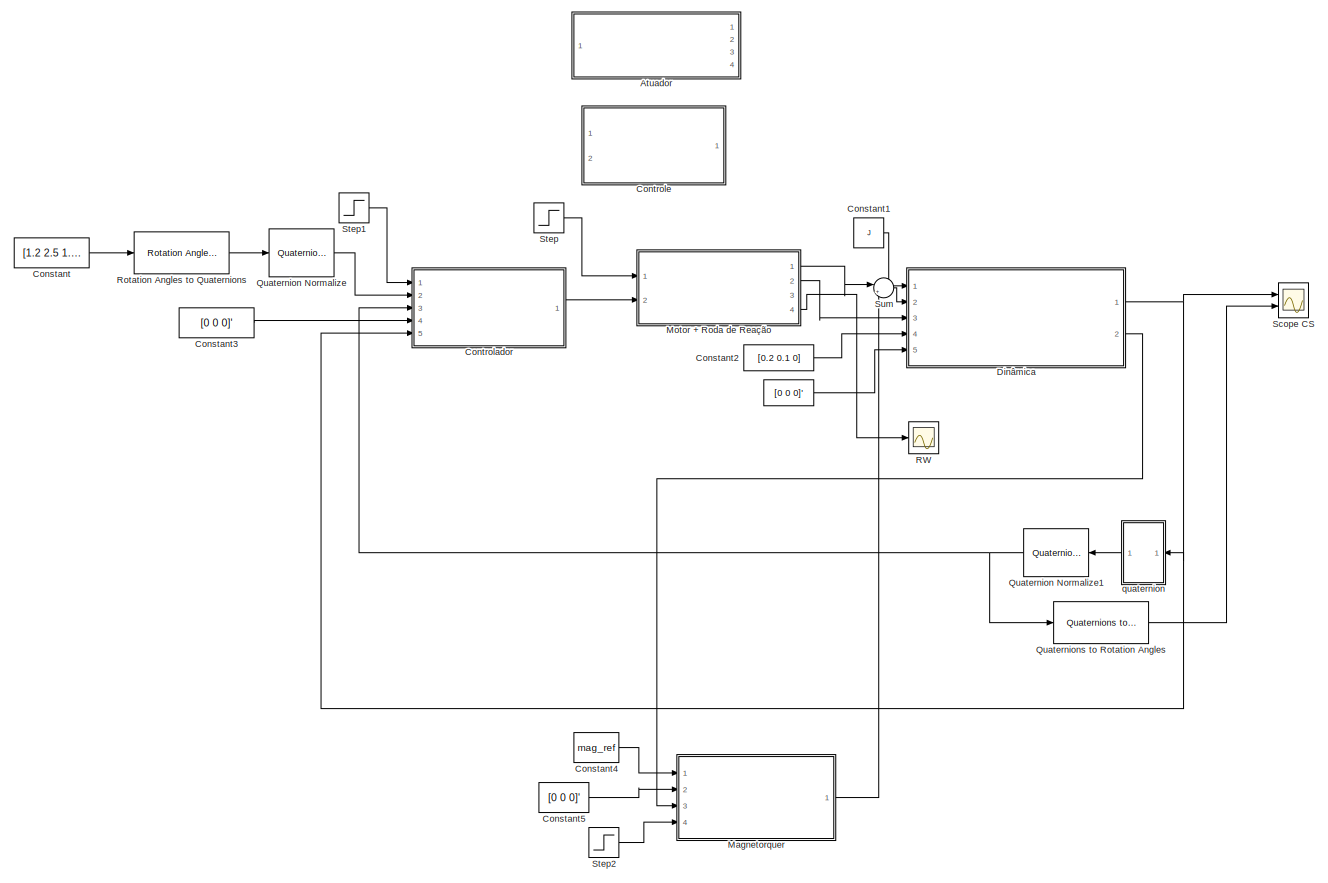
[diagram: root canvas - part 1/1, most of the canvas]
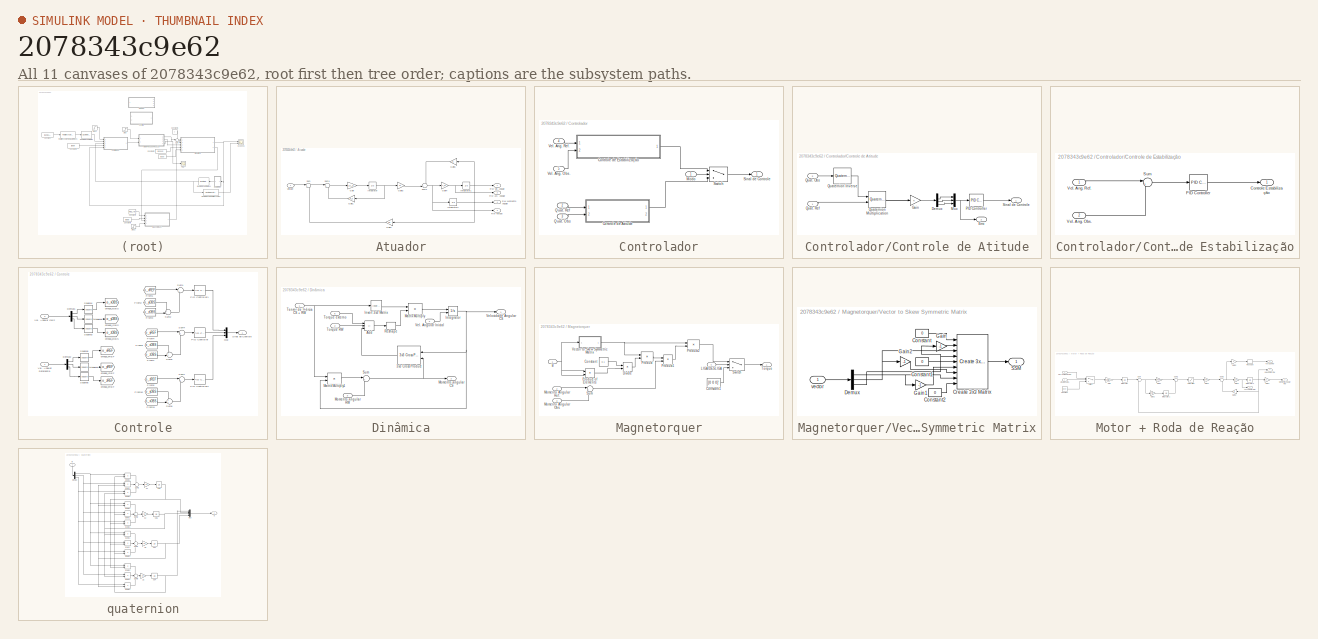
[diagram: thumbnail index - all 11 canvases of the model, root first then tree order]
MODEL slx_2078343c9e62
KIND model
CONFIG AbsTol = auto
CONFIG EnableMultiTasking = off
CONFIG FixedStep = auto
CONFIG MaxStep = 0.4
CONFIG MinStep = auto
CONFIG RelTol = 1e-3
CONFIG SampleTimeConstraint = Unconstrained
CONFIG SolverName = ode45
CONFIG StartTime = 0.0
CONFIG StopTime = 1000
BLOCK [Constant]  
  Value = [0 0 0]'
BLOCK [SubSystem] Atuador
  Ports = [1, 4]
  RequestExecContextInheritance = off
BLOCK [Gain] Atuador/Gain
  Gain = 1/L_a
BLOCK [Gain] Atuador/Gain1
  Gain = R_a
  NameLocation = top
BLOCK [Gain] Atuador/Gain2
  Gain = Ke
  NameLocation = top
BLOCK [Gain] Atuador/Gain3
  Gain = Kt
BLOCK [Gain] Atuador/Gain4
  Gain = J_m
BLOCK [Gain] Atuador/Gain5
  Gain = B
  NameLocation = top
BLOCK [Integrator] Atuador/Integrator
  Ports = [1, 1]
BLOCK [Integrator] Atuador/Integrator1
  Ports = [1, 1]
BLOCK [Integrator] Atuador/Integrator2
  Ports = [1, 1]
BLOCK [Outport] Atuador/RW Acc. Angular
  Port = 2
BLOCK [Outport] Atuador/RW Momento Angular
  Port = 4
BLOCK [Outport] Atuador/RW Torque
  Port = 3
BLOCK [Outport] Atuador/RW Vel. Angular
BLOCK [Sum] Atuador/Sum
  Inputs = |+-
  Ports = [2, 1]
BLOCK [Sum] Atuador/Sum1
  Inputs = |+-
  Ports = [2, 1]
BLOCK [Sum] Atuador/Sum2
  Inputs = -+|
  Ports = [2, 1]
BLOCK [Inport] Atuador/Voltage
BLOCK [Constant] Constant
  Value = [1.2 2.5 1.4]'
BLOCK [Constant] Constant1
  Value = J
BLOCK [Constant] Constant2
  Value = [0.2 0.1 0]
BLOCK [Constant] Constant3
  Value = [0 0 0]'
BLOCK [Constant] Constant4
  Value = mag_ref
BLOCK [Constant] Constant5
  Value = [0 0 0]'
BLOCK [SubSystem] Controlador
  Ports = [5, 1]
  RequestExecContextInheritance = off
BLOCK [SubSystem] Controlador/Controle de Atitude
  Ports = [2, 2]
  RequestExecContextInheritance = off
BLOCK [Demux] Controlador/Controle de Atitude/Demux
  Ports = [1, 4]
BLOCK [Outport] Controlador/Controle de Atitude/Erro
  Port = 2
BLOCK [Gain] Controlador/Controle de Atitude/Gain
BLOCK [Mux] Controlador/Controle de Atitude/Mux
  DisplayOption = bar
  Inputs = 3
  Ports = [3, 1]
BLOCK [Reference] Controlador/Controle de Atitude/PID Controller  REF=slpidlib/PID Controller
  Ports = [1, 1]
  SourceBlock = slpidlib/PID Controller
  SourceProductBaseCode = SL
  SourceType = PID 1dof
BLOCK [Inport] Controlador/Controle de Atitude/Quat. Obs
  Port = 2
BLOCK [Inport] Controlador/Controle de Atitude/Quat. Ref
BLOCK [Reference] Controlador/Controle de Atitude/Quaternion Inverse  REF=aerolibutil/Quaternion
Inverse
  Ports = [1, 1]
  SourceBlock = aerolibutil/Quaternion\nInverse
  SourceProductBaseCode = AE
  SourceType = Quaternion Inverse
BLOCK [Reference] Controlador/Controle de Atitude/Quaternion Multiplication  REF=aerolibutil/Quaternion
Multiplication
  Ports = [2, 1]
  SourceBlock = aerolibutil/Quaternion\nMultiplication
  SourceProductBaseCode = AE
  SourceType = Quaternion Multiplication
BLOCK [Outport] Controlador/Controle de Atitude/Sinal de Controle
BLOCK [SubSystem] Controlador/Controle de Estabilização
  Ports = [2, 1]
  RequestExecContextInheritance = off
BLOCK [Outport] Controlador/Controle de Estabilização/Controle Estabilização
BLOCK [Reference] Controlador/Controle de Estabilização/PID Controller  REF=slpidlib/PID Controller
  Ports = [1, 1]
  SourceBlock = slpidlib/PID Controller
  SourceProductBaseCode = SL
  SourceType = PID 1dof
BLOCK [Sum] Controlador/Controle de Estabilização/Sum
  Inputs = |+-
  Ports = [2, 1]
BLOCK [Inport] Controlador/Controle de Estabilização/Vel. Ang. Obs.
  Port = 2
BLOCK [Inport] Controlador/Controle de Estabilização/Vel. Ang. Ref.
BLOCK [Inport] Controlador/Modo
BLOCK [Inport] Controlador/Quat. Obs
  Port = 3
BLOCK [Inport] Controlador/Quat. Ref
  Port = 2
BLOCK [Outport] Controlador/Sinal de Controle
BLOCK [Switch] Controlador/Switch
  Criteria = u2 > Threshold
  InputSameDT = off
  SaturateOnIntegerOverflow = off
BLOCK [Inport] Controlador/Vel. Ang. Obs.
  Port = 5
BLOCK [Inport] Controlador/Vel. Ang. Ref.
  Port = 4
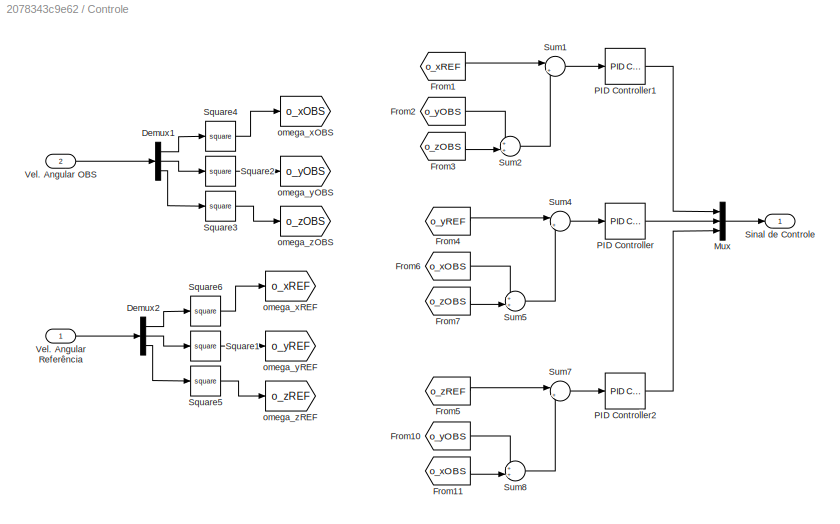
BLOCK [SubSystem] Controle
  Ports = [2, 1]
  RequestExecContextInheritance = off
BLOCK [Demux] Controle/Demux1
  Outputs = 3
  Ports = [1, 3]
BLOCK [Demux] Controle/Demux2
  Outputs = 3
  Ports = [1, 3]
BLOCK [From] Controle/From1
  GotoTag = o_xREF
BLOCK [From] Controle/From10
  GotoTag = o_yOBS
BLOCK [From] Controle/From11
  GotoTag = o_xOBS
BLOCK [From] Controle/From2
  GotoTag = o_yOBS
BLOCK [From] Controle/From3
  GotoTag = o_zOBS
BLOCK [From] Controle/From4
  GotoTag = o_yREF
BLOCK [From] Controle/From5
  GotoTag = o_zREF
BLOCK [From] Controle/From6
  GotoTag = o_xOBS
BLOCK [From] Controle/From7
  GotoTag = o_zOBS
BLOCK [Mux] Controle/Mux
  DisplayOption = bar
  Inputs = 3
  Ports = [3, 1]
BLOCK [Reference] Controle/PID Controller  REF=slpidlib/PID Controller
  Ports = [1, 1]
  SourceBlock = slpidlib/PID Controller
  SourceProductBaseCode = SL
  SourceType = PID 1dof
BLOCK [Reference] Controle/PID Controller1  REF=slpidlib/PID Controller
  Ports = [1, 1]
  SourceBlock = slpidlib/PID Controller
  SourceProductBaseCode = SL
  SourceType = PID 1dof
BLOCK [Reference] Controle/PID Controller2  REF=slpidlib/PID Controller
  Ports = [1, 1]
  SourceBlock = slpidlib/PID Controller
  SourceProductBaseCode = SL
  SourceType = PID 1dof
BLOCK [Outport] Controle/Sinal de Controle
BLOCK [Math] Controle/Square1
  Operator = square
  Ports = [1, 1]
BLOCK [Math] Controle/Square2
  Operator = square
  Ports = [1, 1]
BLOCK [Math] Controle/Square3
  Operator = square
  Ports = [1, 1]
BLOCK [Math] Controle/Square4
  Operator = square
  Ports = [1, 1]
BLOCK [Math] Controle/Square5
  Operator = square
  Ports = [1, 1]
BLOCK [Math] Controle/Square6
  Operator = square
  Ports = [1, 1]
BLOCK [Sum] Controle/Sum1
  Inputs = |+-
  Ports = [2, 1]
BLOCK [Sum] Controle/Sum2
  Inputs = ++|
  Ports = [2, 1]
BLOCK [Sum] Controle/Sum4
  Inputs = |+-
  Ports = [2, 1]
BLOCK [Sum] Controle/Sum5
  Inputs = ++|
  Ports = [2, 1]
BLOCK [Sum] Controle/Sum7
  Inputs = |+-
  Ports = [2, 1]
BLOCK [Sum] Controle/Sum8
  Inputs = ++|
  Ports = [2, 1]
BLOCK [Inport] Controle/Vel. Angular OBS
  Port = 2
BLOCK [Inport] Controle/Vel. Angular Referência
BLOCK [Goto] Controle/omega_xOBS
  GotoTag = o_xOBS
BLOCK [Goto] Controle/omega_xREF
  GotoTag = o_xREF
BLOCK [Goto] Controle/omega_yOBS
  GotoTag = o_yOBS
BLOCK [Goto] Controle/omega_yREF
  GotoTag = o_yREF
BLOCK [Goto] Controle/omega_zOBS
  GotoTag = o_zOBS
BLOCK [Goto] Controle/omega_zREF
  GotoTag = o_zREF
BLOCK [SubSystem] Dinâmica
  Ports = [5, 2]
  RequestExecContextInheritance = off
BLOCK [Reference] Dinâmica/3x3 Cross Product  REF=sharedutil/3x3 Cross Product
  NameLocation = top
  Ports = [2, 1]
  SourceBlock = sharedutil/3x3 Cross Product
  SourceProductBaseCode = AE,PW,DR,MT,UV,VE
  SourceType = CrossProduct
BLOCK [Sum] Dinâmica/Add
  IconShape = rectangular
  Inputs = +--
  Ports = [3, 1]
BLOCK [Integrator] Dinâmica/Integrator
  InitialConditionSource = external
  Ports = [2, 1]
BLOCK [Reference] Dinâmica/Invert 3x3 Matrix  REF=aerolibutil/Invert 
3x3 Matrix
  Ports = [1, 1]
  SourceBlock = aerolibutil/Invert \n3x3 Matrix
  SourceProductBaseCode = AE
  SourceType = Invert 3x3 Matrix
BLOCK [Product] Dinâmica/Matrix Multiply
  Multiplication = Matrix(*)
  Ports = [2, 1]
BLOCK [Product] Dinâmica/Matrix Multiply1
  Multiplication = Matrix(*)
  Ports = [2, 1]
BLOCK [Outport] Dinâmica/Momento angular CS
  Port = 2
BLOCK [Inport] Dinâmica/Momento angular RW
  Port = 3
BLOCK [Reshape] Dinâmica/Reshape
  OutputDimensionality = Column vector (2-D)
  Ports = [1, 1]
BLOCK [Sum] Dinâmica/Sum
  Inputs = |++
  Ports = [2, 1]
BLOCK [Inport] Dinâmica/Tensor de Inércia CS + RW
BLOCK [Inport] Dinâmica/Torque RW
  Port = 2
BLOCK [Inport] Dinâmica/Torque externo
  Port = 5
BLOCK [Inport] Dinâmica/Vel. Angular Inicial
  Port = 4
BLOCK [Outport] Dinâmica/Velocidade Angular CS
BLOCK [SubSystem] Magnetorquer
  Ports = [4, 1]
  RequestExecContextInheritance = off
BLOCK [Inport] Magnetorquer/B
BLOCK [Constant] Magnetorquer/Constant
  Value = 0.1
BLOCK [Constant] Magnetorquer/Constant1
  Value = [0 0 0]'
BLOCK [Product] Magnetorquer/Divide
  Inputs = */
  Ports = [2, 1]
BLOCK [Inport] Magnetorquer/LIGA//DESLIGA
  Port = 4
BLOCK [Inport] Magnetorquer/Momento Angular Obs.
  Port = 3
BLOCK [Inport] Magnetorquer/Momento Angular Ref.
  Port = 2
BLOCK [Product] Magnetorquer/Product
  Multiplication = Matrix(*)
  Ports = [2, 1]
BLOCK [Product] Magnetorquer/Product of Elements
  Ports = [2, 1]
BLOCK [Product] Magnetorquer/Product1
  Ports = [2, 1]
BLOCK [Product] Magnetorquer/Product2
  Multiplication = Matrix(*)
  Ports = [2, 1]
BLOCK [Sum] Magnetorquer/Sum
  Inputs = |+-
  Ports = [2, 1]
BLOCK [Switch] Magnetorquer/Switch
  Criteria = u2 > Threshold
  InputSameDT = off
  SaturateOnIntegerOverflow = off
BLOCK [Outport] Magnetorquer/Torque
BLOCK [SubSystem] Magnetorquer/Vector to Skew Symmetric Matrix
  Ports = [1, 1]
  RequestExecContextInheritance = off
BLOCK [Constant] Magnetorquer/Vector to Skew Symmetric Matrix/Constant
  Value = 0
BLOCK [Constant] Magnetorquer/Vector to Skew Symmetric Matrix/Constant1
  Value = 0
BLOCK [Constant] Magnetorquer/Vector to Skew Symmetric Matrix/Constant2
  Value = 0
BLOCK [Reference] Magnetorquer/Vector to Skew Symmetric Matrix/Create 3x3 Matrix  REF=sharedutil/Create 3x3 Matrix
  Ports = [9, 1]
  SourceBlock = sharedutil/Create 3x3 Matrix
  SourceProductBaseCode = AE,PW,DR,MT,UV,VE
  SourceType = Create 3x3 Matrix
BLOCK [Demux] Magnetorquer/Vector to Skew Symmetric Matrix/Demux
  Outputs = 3
  Ports = [1, 3]
BLOCK [Gain] Magnetorquer/Vector to Skew Symmetric Matrix/Gain
  Gain = -1
BLOCK [Gain] Magnetorquer/Vector to Skew Symmetric Matrix/Gain1
  Gain = -1
BLOCK [Gain] Magnetorquer/Vector to Skew Symmetric Matrix/Gain2
  Gain = -1
BLOCK [Outport] Magnetorquer/Vector to Skew Symmetric Matrix/SSM
BLOCK [Inport] Magnetorquer/Vector to Skew Symmetric Matrix/vector
BLOCK [SubSystem] Motor + Roda de Reação
  Ports = [2, 4]
  RequestExecContextInheritance = off
BLOCK [Outport] Motor + Roda de Reação/Acc. Angular RW
  Port = 3
BLOCK [Constant] Motor + Roda de Reação/Constant
  Value = [0 0 0]'
BLOCK [Inport] Motor + Roda de Reação/Corrente entrada
  Port = 2
BLOCK [Gain] Motor + Roda de Reação/Gain
  Gain = Km/Jr
BLOCK [Gain] Motor + Roda de Reação/Gain1
  Gain = Kpw
BLOCK [Gain] Motor + Roda de Reação/Gain2
  Gain = Kiw
BLOCK [Gain] Motor + Roda de Reação/Gain3
  Gain = Km
BLOCK [Gain] Motor + Roda de Reação/Gain4
  Gain = 1/Jr
BLOCK [Gain] Motor + Roda de Reação/Gain5
  Gain = -1
BLOCK [Gain] Motor + Roda de Reação/Gain6
  Gain = b
  NameLocation = top
BLOCK [Gain] Motor + Roda de Reação/Gain7
  Gain = Jr
BLOCK [Integrator] Motor + Roda de Reação/Integrator
  Ports = [1, 1]
BLOCK [Integrator] Motor + Roda de Reação/Integrator1
  Ports = [1, 1]
BLOCK [Integrator] Motor + Roda de Reação/Integrator2
  Ports = [1, 1]
BLOCK [Inport] Motor + Roda de Reação/LIGA//DESLIGA
BLOCK [Outport] Motor + Roda de Reação/Momento Angular RW
  Port = 2
BLOCK [Reshape] Motor + Roda de Reação/Reshape
  OutputDimensionality = Column vector (2-D)
  Ports = [1, 1]
BLOCK [Saturate] Motor + Roda de Reação/Saturation
BLOCK [Sum] Motor + Roda de Reação/Sum
  Inputs = |+-
  Ports = [2, 1]
BLOCK [Sum] Motor + Roda de Reação/Sum1
  Inputs = |++
  Ports = [2, 1]
BLOCK [Sum] Motor + Roda de Reação/Sum2
  Inputs = |+-
  Ports = [2, 1]
BLOCK [Switch] Motor + Roda de Reação/Switch
  Criteria = u2 > Threshold
  InputSameDT = off
  SaturateOnIntegerOverflow = off
BLOCK [Outport] Motor + Roda de Reação/Torque RW
BLOCK [Outport] Motor + Roda de Reação/Vel. Angular RW
  Port = 4
BLOCK [Reference] Quaternion Normalize  REF=sharedutil/Quaternion
Normalize
  Ports = [1, 1]
  SourceBlock = sharedutil/Quaternion\nNormalize
  SourceProductBaseCode = AE,PW,DR,MT,UV,VE
  SourceType = Quaternion Normalize
BLOCK [Reference] Quaternion Normalize1  REF=sharedutil/Quaternion
Normalize
  NameLocation = top
  Ports = [1, 1]
  SourceBlock = sharedutil/Quaternion\nNormalize
  SourceProductBaseCode = AE,PW,DR,MT,UV,VE
  SourceType = Quaternion Normalize
BLOCK [Reference] Quaternions to Rotation Angles  REF=sharedtransform/Quaternions to Rotation Angles
  AttributesFormatString = Rotation Order: %<rotationOrder>
  Ports = [1, 1]
  SourceBlock = sharedtransform/Quaternions to Rotation Angles
  SourceProductBaseCode = AE,PW,DR,MT,UV,VE
  SourceType = Quat2Ang
BLOCK [Scope] RW
  Floating = off
  NumInputPorts = 1
  Ports = [1]
  ScopeSpecificationString = Simulink.scopes.TimeScopeBlockCfg('CurrentConfiguration', extmgr.ConfigurationSet(extmgr.Configuration('Core','General UI',true),extmgr.Configuration('Core','Source UI',true),extmgr.Configuration('Sources','WiredSimulink',true,'DataLoggingVariableName','ScopeData1'),extmgr.Configuration('Visuals','Time Domain',true,'SerializedDisplays',{struct('MinYLimReal','-195.91285','MaxYLimReal','111.03174','...<+1557ch>
BLOCK [Reference] Rotation Angles to Quaternions  REF=sharedtransform/Rotation Angles to Quaternions
  AttributesFormatString = Rotation Order: %<rotationOrder>
  Ports = [1, 1]
  SourceBlock = sharedtransform/Rotation Angles to Quaternions
  SourceProductBaseCode = AE,PW,DR,MT,UV,VE
  SourceType = Ang2Quat
BLOCK [Scope] Scope CS
  Floating = off
  NumInputPorts = 2
  Ports = [2]
  ScopeSpecificationString = Simulink.scopes.TimeScopeBlockCfg('CurrentConfiguration', extmgr.ConfigurationSet(extmgr.Configuration('Core','General UI',true),extmgr.Configuration('Core','Source UI',true),extmgr.Configuration('Sources','WiredSimulink',true),extmgr.Configuration('Visuals','Time Domain',true,'SerializedDisplays',{struct('MinYLimReal','-4890.10221','MaxYLimReal','3289.64851','YLabelReal','','MinYLimMag','  0.0000...<+1794ch>
BLOCK [Step] Step
  Before = 1
  SampleTime = 0
  Time = 100
BLOCK [Step] Step1
  After = 0
  Before = 1
  SampleTime = 0
  Time = 20
BLOCK [Step] Step2
  SampleTime = 0
  Time = 20
BLOCK [Sum] Sum
  Inputs = |++
  Ports = [2, 1]
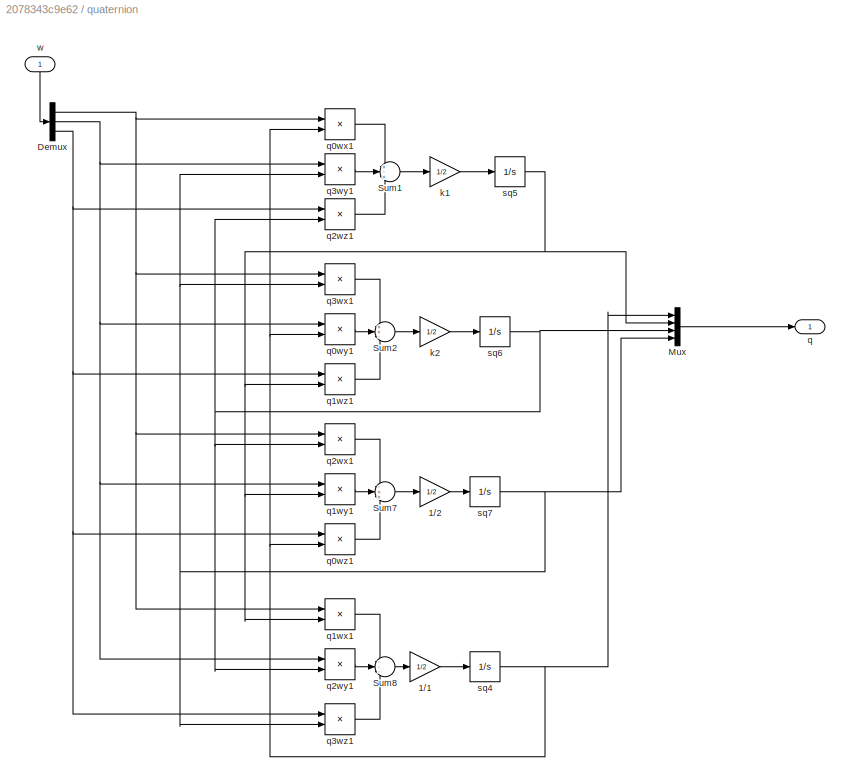
BLOCK [SubSystem] quaternion
  NameLocation = top
  Ports = [1, 1]
  RequestExecContextInheritance = off
BLOCK [Gain] quaternion/1//1
  Gain = 1/2
BLOCK [Gain] quaternion/1//2
  Gain = 1/2
BLOCK [Demux] quaternion/Demux
  Outputs = 3
  Ports = [1, 3]
BLOCK [Mux] quaternion/Mux
  DisplayOption = bar
  Ports = [4, 1]
BLOCK [Sum] quaternion/Sum1
  Inputs = +-+
  Ports = [3, 1]
BLOCK [Sum] quaternion/Sum2
  Inputs = ++-
  Ports = [3, 1]
BLOCK [Sum] quaternion/Sum7
  Inputs = -++
  Ports = [3, 1]
BLOCK [Sum] quaternion/Sum8
  Inputs = ---
  Ports = [3, 1]
BLOCK [Gain] quaternion/k1
  Gain = 1/2
BLOCK [Gain] quaternion/k2
  Gain = 1/2
BLOCK [Outport] quaternion/q
BLOCK [Product] quaternion/q0wx1
  Ports = [2, 1]
  RndMeth = Zero
BLOCK [Product] quaternion/q0wy1
  Ports = [2, 1]
  RndMeth = Zero
BLOCK [Product] quaternion/q0wz1
  Ports = [2, 1]
  RndMeth = Zero
BLOCK [Product] quaternion/q1wx1
  Ports = [2, 1]
  RndMeth = Zero
BLOCK [Product] quaternion/q1wy1
  Ports = [2, 1]
  RndMeth = Zero
BLOCK [Product] quaternion/q1wz1
  Ports = [2, 1]
  RndMeth = Zero
BLOCK [Product] quaternion/q2wx1
  Ports = [2, 1]
  RndMeth = Zero
BLOCK [Product] quaternion/q2wy1
  Ports = [2, 1]
  RndMeth = Zero
BLOCK [Product] quaternion/q2wz1
  Ports = [2, 1]
  RndMeth = Zero
BLOCK [Product] quaternion/q3wx1
  Ports = [2, 1]
  RndMeth = Zero
BLOCK [Product] quaternion/q3wy1
  Ports = [2, 1]
  RndMeth = Zero
BLOCK [Product] quaternion/q3wz1
  Ports = [2, 1]
  RndMeth = Zero
BLOCK [Integrator] quaternion/sq4
  InitialCondition = 1
  Ports = [1, 1]
BLOCK [Integrator] quaternion/sq5
  Ports = [1, 1]
BLOCK [Integrator] quaternion/sq6
  Ports = [1, 1]
BLOCK [Integrator] quaternion/sq7
  Ports = [1, 1]
BLOCK [Inport] quaternion/w
  NameLocation = right
LINE  :1 -> Dinâmica:5
LINE Atuador/Gain1:1 -> Atuador/Sum1:2
LINE Atuador/Gain2:1 -> Atuador/Sum:2
LINE Atuador/Gain3:1 -> Atuador/Sum2:2
NET Atuador/Gain4:1 -> Atuador/Integrator1:1, Atuador/RW Acc. Angular:1
LINE Atuador/Gain5:1 -> Atuador/Sum2:1
LINE Atuador/Gain:1 -> Atuador/Integrator:1
NET Atuador/Integrator1:1 -> Atuador/Gain2:1, Atuador/Gain5:1, Atuador/RW Vel. Angular:1
LINE Atuador/Integrator2:1 -> Atuador/RW Momento Angular:1
NET Atuador/Integrator:1 -> Atuador/Gain1:1, Atuador/Gain3:1
LINE Atuador/Sum1:1 -> Atuador/Gain:1
NET Atuador/Sum2:1 -> Atuador/Gain4:1, Atuador/Integrator2:1, Atuador/RW Torque:1
LINE Atuador/Sum:1 -> Atuador/Sum1:1
LINE Atuador/Voltage:1 -> Atuador/Sum:1
LINE Constant1:1 -> Dinâmica:1
LINE Constant2:1 -> Dinâmica:4
LINE Constant3:1 -> Controlador:4
LINE Constant4:1 -> Magnetorquer:1
LINE Constant5:1 -> Magnetorquer:2
LINE Constant:1 -> Rotation Angles to Quaternions:1
LINE Controlador/Controle de Atitude/Demux:2 -> Controlador/Controle de Atitude/Mux:1
LINE Controlador/Controle de Atitude/Demux:3 -> Controlador/Controle de Atitude/Mux:2
LINE Controlador/Controle de Atitude/Demux:4 -> Controlador/Controle de Atitude/Mux:3
LINE Controlador/Controle de Atitude/Gain:1 -> Controlador/Controle de Atitude/Demux:1
NET Controlador/Controle de Atitude/Mux:1 -> Controlador/Controle de Atitude/Erro:1, Controlador/Controle de Atitude/PID Controller:1
LINE Controlador/Controle de Atitude/PID Controller:1 -> Controlador/Controle de Atitude/Sinal de Controle:1
LINE Controlador/Controle de Atitude/Quat. Obs:1 -> Controlador/Controle de Atitude/Quaternion Inverse:1
LINE Controlador/Controle de Atitude/Quat. Ref:1 -> Controlador/Controle de Atitude/Quaternion Multiplication:2
LINE Controlador/Controle de Atitude/Quaternion Inverse:1 -> Controlador/Controle de Atitude/Quaternion Multiplication:1
LINE Controlador/Controle de Atitude/Quaternion Multiplication:1 -> Controlador/Controle de Atitude/Gain:1
LINE Controlador/Controle de Atitude:1 -> Controlador/Switch:3
LINE Controlador/Controle de Estabilização/PID Controller:1 -> Controlador/Controle de Estabilização/Controle Estabilização:1
LINE Controlador/Controle de Estabilização/Sum:1 -> Controlador/Controle de Estabilização/PID Controller:1
LINE Controlador/Controle de Estabilização/Vel. Ang. Obs.:1 -> Controlador/Controle de Estabilização/Sum:2
LINE Controlador/Controle de Estabilização/Vel. Ang. Ref.:1 -> Controlador/Controle de Estabilização/Sum:1
LINE Controlador/Controle de Estabilização:1 -> Controlador/Switch:1
LINE Controlador/Modo:1 -> Controlador/Switch:2
LINE Controlador/Quat. Obs:1 -> Controlador/Controle de Atitude:2
LINE Controlador/Quat. Ref:1 -> Controlador/Controle de Atitude:1
LINE Controlador/Switch:1 -> Controlador/Sinal de Controle:1
LINE Controlador/Vel. Ang. Obs.:1 -> Controlador/Controle de Estabilização:2
LINE Controlador/Vel. Ang. Ref.:1 -> Controlador/Controle de Estabilização:1
LINE Controlador:1 -> Motor + Roda de Reação:2
LINE Controle/Demux1:1 -> Controle/Square4:1
LINE Controle/Demux1:2 -> Controle/Square2:1
LINE Controle/Demux1:3 -> Controle/Square3:1
LINE Controle/Demux2:1 -> Controle/Square6:1
LINE Controle/Demux2:2 -> Controle/Square1:1
LINE Controle/Demux2:3 -> Controle/Square5:1
LINE Controle/From10:1 -> Controle/Sum8:1
LINE Controle/From11:1 -> Controle/Sum8:2
LINE Controle/From1:1 -> Controle/Sum1:1
LINE Controle/From2:1 -> Controle/Sum2:1
LINE Controle/From3:1 -> Controle/Sum2:2
LINE Controle/From4:1 -> Controle/Sum4:1
LINE Controle/From5:1 -> Controle/Sum7:1
LINE Controle/From6:1 -> Controle/Sum5:1
LINE Controle/From7:1 -> Controle/Sum5:2
LINE Controle/Mux:1 -> Controle/Sinal de Controle:1
LINE Controle/PID Controller1:1 -> Controle/Mux:1
LINE Controle/PID Controller2:1 -> Controle/Mux:3
LINE Controle/PID Controller:1 -> Controle/Mux:2
LINE Controle/Square1:1 -> Controle/omega_yREF:1
LINE Controle/Square2:1 -> Controle/omega_yOBS:1
LINE Controle/Square3:1 -> Controle/omega_zOBS:1
LINE Controle/Square4:1 -> Controle/omega_xOBS:1
LINE Controle/Square5:1 -> Controle/omega_zREF:1
LINE Controle/Square6:1 -> Controle/omega_xREF:1
LINE Controle/Sum1:1 -> Controle/PID Controller1:1
LINE Controle/Sum2:1 -> Controle/Sum1:2
LINE Controle/Sum4:1 -> Controle/PID Controller:1
LINE Controle/Sum5:1 -> Controle/Sum4:2
LINE Controle/Sum7:1 -> Controle/PID Controller2:1
LINE Controle/Sum8:1 -> Controle/Sum7:2
LINE Controle/Vel. Angular OBS:1 -> Controle/Demux1:1
LINE Controle/Vel. Angular Referência:1 -> Controle/Demux2:1
LINE Dinâmica/3x3 Cross Product:1 -> Dinâmica/Add:3
LINE Dinâmica/Add:1 -> Dinâmica/Reshape:1
NET Dinâmica/Integrator:1 -> Dinâmica/3x3 Cross Product:1, Dinâmica/Matrix Multiply1:2, Dinâmica/Velocidade Angular CS:1
LINE Dinâmica/Invert 3x3 Matrix:1 -> Dinâmica/Matrix Multiply:1
LINE Dinâmica/Matrix Multiply1:1 -> Dinâmica/Sum:1
LINE Dinâmica/Matrix Multiply:1 -> Dinâmica/Integrator:1
LINE Dinâmica/Momento angular RW:1 -> Dinâmica/Sum:2
LINE Dinâmica/Reshape:1 -> Dinâmica/Matrix Multiply:2
NET Dinâmica/Sum:1 -> Dinâmica/3x3 Cross Product:2, Dinâmica/Momento angular CS:1
NET Dinâmica/Tensor de Inércia CS + RW:1 -> Dinâmica/Invert 3x3 Matrix:1, Dinâmica/Matrix Multiply1:1
LINE Dinâmica/Torque RW:1 -> Dinâmica/Add:2
LINE Dinâmica/Torque externo:1 -> Dinâmica/Add:1
LINE Dinâmica/Vel. Angular Inicial:1 -> Dinâmica/Integrator:2
NET Dinâmica:1 -> Controlador:5, Scope CS:1, quaternion:1
LINE Dinâmica:2 -> Magnetorquer:3
NET Magnetorquer/B:1 -> Magnetorquer/Product of Elements:1, Magnetorquer/Product of Elements:2, Magnetorquer/Vector to Skew Symmetric Matrix:1
LINE Magnetorquer/Constant1:1 -> Magnetorquer/Switch:3
LINE Magnetorquer/Constant:1 -> Magnetorquer/Divide:1
LINE Magnetorquer/Divide:1 -> Magnetorquer/Product:2
LINE Magnetorquer/LIGA//DESLIGA:1 -> Magnetorquer/Switch:2
LINE Magnetorquer/Momento Angular Obs.:1 -> Magnetorquer/Sum:2
LINE Magnetorquer/Momento Angular Ref.:1 -> Magnetorquer/Sum:1
LINE Magnetorquer/Product of Elements:1 -> Magnetorquer/Divide:2
LINE Magnetorquer/Product1:1 -> Magnetorquer/Product2:2
LINE Magnetorquer/Product2:1 -> Magnetorquer/Switch:1
LINE Magnetorquer/Product:1 -> Magnetorquer/Product1:1
LINE Magnetorquer/Sum:1 -> Magnetorquer/Product1:2
LINE Magnetorquer/Switch:1 -> Magnetorquer/Torque:1
LINE Magnetorquer/Vector to Skew Symmetric Matrix/Constant1:1 -> Magnetorquer/Vector to Skew Symmetric Matrix/Create 3x3 Matrix:5
LINE Magnetorquer/Vector to Skew Symmetric Matrix/Constant2:1 -> Magnetorquer/Vector to Skew Symmetric Matrix/Create 3x3 Matrix:9
LINE Magnetorquer/Vector to Skew Symmetric Matrix/Constant:1 -> Magnetorquer/Vector to Skew Symmetric Matrix/Create 3x3 Matrix:1
LINE Magnetorquer/Vector to Skew Symmetric Matrix/Create 3x3 Matrix:1 -> Magnetorquer/Vector to Skew Symmetric Matrix/SSM:1
NET Magnetorquer/Vector to Skew Symmetric Matrix/Demux:1 -> Magnetorquer/Vector to Skew Symmetric Matrix/Create 3x3 Matrix:8, Magnetorquer/Vector to Skew Symmetric Matrix/Gain1:1
NET Magnetorquer/Vector to Skew Symmetric Matrix/Demux:2 -> Magnetorquer/Vector to Skew Symmetric Matrix/Create 3x3 Matrix:3, Magnetorquer/Vector to Skew Symmetric Matrix/Gain2:1
NET Magnetorquer/Vector to Skew Symmetric Matrix/Demux:3 -> Magnetorquer/Vector to Skew Symmetric Matrix/Create 3x3 Matrix:4, Magnetorquer/Vector to Skew Symmetric Matrix/Gain:1
LINE Magnetorquer/Vector to Skew Symmetric Matrix/Gain1:1 -> Magnetorquer/Vector to Skew Symmetric Matrix/Create 3x3 Matrix:6
LINE Magnetorquer/Vector to Skew Symmetric Matrix/Gain2:1 -> Magnetorquer/Vector to Skew Symmetric Matrix/Create 3x3 Matrix:7
LINE Magnetorquer/Vector to Skew Symmetric Matrix/Gain:1 -> Magnetorquer/Vector to Skew Symmetric Matrix/Create 3x3 Matrix:2
LINE Magnetorquer/Vector to Skew Symmetric Matrix/vector:1 -> Magnetorquer/Vector to Skew Symmetric Matrix/Demux:1
NET Magnetorquer/Vector to Skew Symmetric Matrix:1 -> Magnetorquer/Product2:1, Magnetorquer/Product:1
LINE Magnetorquer:1 -> Sum:2
LINE Motor + Roda de Reação/Constant:1 -> Motor + Roda de Reação/Switch:3
LINE Motor + Roda de Reação/Corrente entrada:1 -> Motor + Roda de Reação/Switch:1
LINE Motor + Roda de Reação/Gain1:1 -> Motor + Roda de Reação/Sum1:1
LINE Motor + Roda de Reação/Gain2:1 -> Motor + Roda de Reação/Integrator1:1
LINE Motor + Roda de Reação/Gain3:1 -> Motor + Roda de Reação/Sum2:1
NET Motor + Roda de Reação/Gain4:1 -> Motor + Roda de Reação/Acc. Angular RW:1, Motor + Roda de Reação/Integrator2:1
LINE Motor + Roda de Reação/Gain5:1 -> Motor + Roda de Reação/Reshape:1
LINE Motor + Roda de Reação/Gain6:1 -> Motor + Roda de Reação/Sum2:2
LINE Motor + Roda de Reação/Gain7:1 -> Motor + Roda de Reação/Momento Angular RW:1
LINE Motor + Roda de Reação/Gain:1 -> Motor + Roda de Reação/Integrator:1
LINE Motor + Roda de Reação/Integrator1:1 -> Motor + Roda de Reação/Sum1:2
NET Motor + Roda de Reação/Integrator2:1 -> Motor + Roda de Reação/Gain6:1, Motor + Roda de Reação/Gain7:1, Motor + Roda de Reação/Sum:2, Motor + Roda de Reação/Vel. Angular RW:1
LINE Motor + Roda de Reação/Integrator:1 -> Motor + Roda de Reação/Sum:1
LINE Motor + Roda de Reação/LIGA//DESLIGA:1 -> Motor + Roda de Reação/Switch:2
LINE Motor + Roda de Reação/Reshape:1 -> Motor + Roda de Reação/Torque RW:1
LINE Motor + Roda de Reação/Saturation:1 -> Motor + Roda de Reação/Gain3:1
LINE Motor + Roda de Reação/Sum1:1 -> Motor + Roda de Reação/Saturation:1
NET Motor + Roda de Reação/Sum2:1 -> Motor + Roda de Reação/Gain4:1, Motor + Roda de Reação/Gain5:1
NET Motor + Roda de Reação/Sum:1 -> Motor + Roda de Reação/Gain1:1, Motor + Roda de Reação/Gain2:1
LINE Motor + Roda de Reação/Switch:1 -> Motor + Roda de Reação/Gain:1
LINE Motor + Roda de Reação:1 -> Sum:1
LINE Motor + Roda de Reação:2 -> Dinâmica:3
LINE Motor + Roda de Reação:4 -> RW:1
NET Quaternion Normalize1:1 -> Controlador:3, Quaternions to Rotation Angles:1
LINE Quaternion Normalize:1 -> Controlador:2
LINE Quaternions to Rotation Angles:1 -> Scope CS:2
LINE Rotation Angles to Quaternions:1 -> Quaternion Normalize:1
LINE Step1:1 -> Controlador:1
LINE Step2:1 -> Magnetorquer:4
LINE Step:1 -> Motor + Roda de Reação:1
LINE Sum:1 -> Dinâmica:2
LINE quaternion/1//1:1 -> quaternion/sq4:1
LINE quaternion/1//2:1 -> quaternion/sq7:1
NET quaternion/Demux:1 -> quaternion/q0wx1:1, quaternion/q1wx1:1, quaternion/q2wx1:1, quaternion/q3wx1:1
NET quaternion/Demux:2 -> quaternion/q0wy1:1, quaternion/q1wy1:1, quaternion/q2wy1:1, quaternion/q3wy1:1
NET quaternion/Demux:3 -> quaternion/q0wz1:1, quaternion/q1wz1:1, quaternion/q2wz1:1, quaternion/q3wz1:1
LINE quaternion/Mux:1 -> quaternion/q:1
LINE quaternion/Sum1:1 -> quaternion/k1:1
LINE quaternion/Sum2:1 -> quaternion/k2:1
LINE quaternion/Sum7:1 -> quaternion/1//2:1
LINE quaternion/Sum8:1 -> quaternion/1//1:1
LINE quaternion/k1:1 -> quaternion/sq5:1
LINE quaternion/k2:1 -> quaternion/sq6:1
LINE quaternion/q0wx1:1 -> quaternion/Sum1:1
LINE quaternion/q0wy1:1 -> quaternion/Sum2:2
LINE quaternion/q0wz1:1 -> quaternion/Sum7:3
LINE quaternion/q1wx1:1 -> quaternion/Sum8:1
LINE quaternion/q1wy1:1 -> quaternion/Sum7:2
LINE quaternion/q1wz1:1 -> quaternion/Sum2:3
LINE quaternion/q2wx1:1 -> quaternion/Sum7:1
LINE quaternion/q2wy1:1 -> quaternion/Sum8:2
LINE quaternion/q2wz1:1 -> quaternion/Sum1:3
LINE quaternion/q3wx1:1 -> quaternion/Sum2:1
LINE quaternion/q3wy1:1 -> quaternion/Sum1:2
LINE quaternion/q3wz1:1 -> quaternion/Sum8:3
NET quaternion/sq4:1 -> quaternion/Mux:1, quaternion/q0wx1:2, quaternion/q0wy1:2, quaternion/q0wz1:2
NET quaternion/sq5:1 -> quaternion/Mux:2, quaternion/q1wx1:2, quaternion/q1wy1:2, quaternion/q1wz1:2
NET quaternion/sq6:1 -> quaternion/Mux:3, quaternion/q2wx1:2, quaternion/q2wy1:2, quaternion/q2wz1:2
NET quaternion/sq7:1 -> quaternion/Mux:4, quaternion/q3wx1:2, quaternion/q3wy1:2, quaternion/q3wz1:2
LINE quaternion/w:1 -> quaternion/Demux:1
LINE quaternion:1 -> Quaternion Normalize1:1
note: NET lines group one-source signal fan-out (src -> all destinations, sorted); 1:1 wires keep LINE
